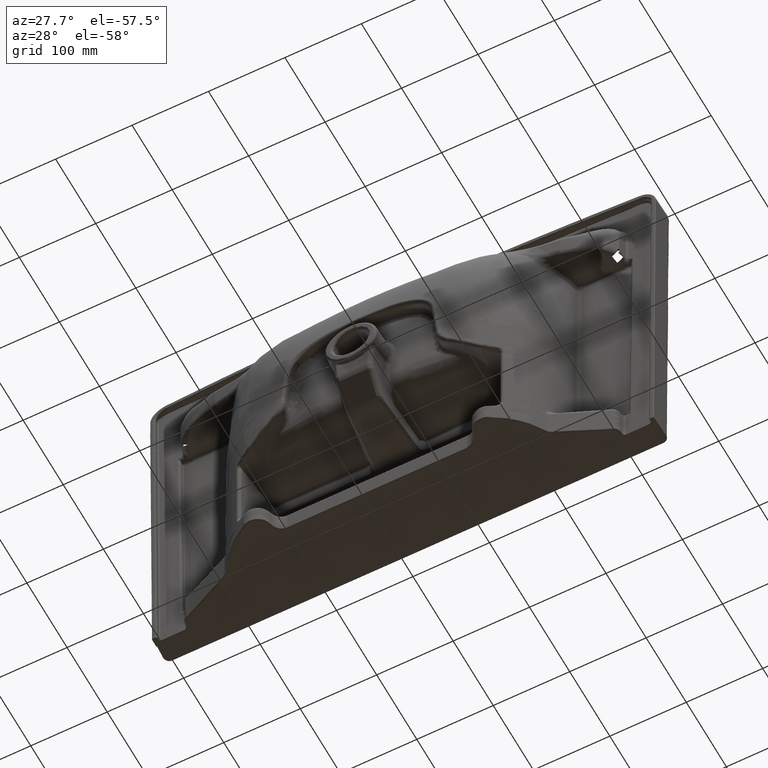
[diagram: clean part render]
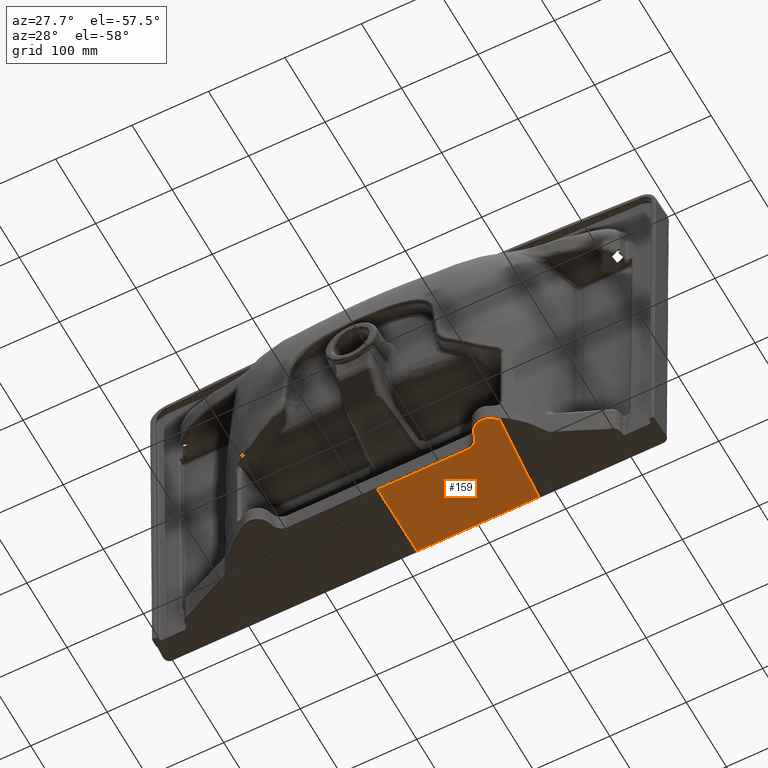
[diagram: same view with one face highlighted and labeled with its STEP entity id]
A machine part, auxiliary view. The second image highlights one B-rep face of the part: STEP entity #159.
In plain terms, the highlighted planar face has unit normal (0, 0.0332, -0.9995).
Its self-contained STEP definition (entity closure, byte-faithful):
#159=ADVANCED_FACE('',(#1765),#22925,.T.);
#1765=FACE_OUTER_BOUND('',#3371,.T.);
#3371=EDGE_LOOP('',(#5468,#5469,#5470,#5471,#5472,#5473,#5474,#5475));
#5468=ORIENTED_EDGE('',*,*,#12642,.T.);
#5469=ORIENTED_EDGE('',*,*,#12643,.T.);
#5470=ORIENTED_EDGE('',*,*,#12644,.T.);
#5471=ORIENTED_EDGE('',*,*,#12645,.T.);
#5472=ORIENTED_EDGE('',*,*,#12646,.T.);
#5473=ORIENTED_EDGE('',*,*,#15909,.T.);
#5474=ORIENTED_EDGE('',*,*,#12602,.F.);
#5475=ORIENTED_EDGE('',*,*,#12639,.F.);
#12602=EDGE_CURVE('',#20053,#20054,#19417,.T.);
#12639=EDGE_CURVE('',#20083,#20053,#16264,.T.);
#12642=EDGE_CURVE('',#20083,#20085,#16267,.T.);
#12643=EDGE_CURVE('',#20085,#20086,#16268,.T.);
#12644=EDGE_CURVE('',#20086,#20087,#16269,.T.);
#12645=EDGE_CURVE('',#20087,#20088,#16270,.T.);
#12646=EDGE_CURVE('',#20088,#20089,#16271,.T.);
#15909=EDGE_CURVE('',#20089,#20054,#19128,.T.);
#16264=B_SPLINE_CURVE_WITH_KNOTS('',3,(#106778,#106779,#106780,#106781,
#106782,#106783,#106784),.UNSPECIFIED.,.F.,.F.,(4,3,4),(1.40042685708996E-06,
0.459673495472688,1.),.UNSPECIFIED.);
#16267=B_SPLINE_CURVE_WITH_KNOTS('',3,(#106797,#106798,#106799,#106800),
 .UNSPECIFIED.,.F.,.F.,(4,4),(0.,1.),.UNSPECIFIED.);
#16268=B_SPLINE_CURVE_WITH_KNOTS('',3,(#106801,#106802,#106803,#106804,
#106805,#106806,#106807,#106808,#106809,#106810),.UNSPECIFIED.,.F.,.F.,
(4,2,2,2,4),(0.,0.25,0.5,0.75,1.),.UNSPECIFIED.);
#16269=B_SPLINE_CURVE_WITH_KNOTS('',3,(#106811,#106812,#106813,#106814),
 .UNSPECIFIED.,.F.,.F.,(4,4),(0.,1.),.UNSPECIFIED.);
#16270=B_SPLINE_CURVE_WITH_KNOTS('',3,(#106815,#106816,#106817,#106818,
#106819,#106820),.UNSPECIFIED.,.F.,.F.,(4,2,4),(0.,0.500000045148028,0.999999999953749),
 .UNSPECIFIED.);
#16271=B_SPLINE_CURVE_WITH_KNOTS('',3,(#106821,#106822,#106823,#106824),
 .UNSPECIFIED.,.F.,.F.,(4,4),(0.,0.999999999999981),.UNSPECIFIED.);
#19128=B_SPLINE_CURVE_WITH_KNOTS('',3,(#123185,#123186,#123187,#123188,
#123189,#123190,#123191,#123192,#123193,#123194),.UNSPECIFIED.,.F.,.F.,
(4,3,3,4),(0.,1.,2.,3.),.UNSPECIFIED.);
#19417=(
BOUNDED_CURVE()
B_SPLINE_CURVE(3,(#106607,#106608,#106609,#106610),.UNSPECIFIED.,.F.,.F.)
B_SPLINE_CURVE_WITH_KNOTS((4,4),(0.,1.),.UNSPECIFIED.)
CURVE()
GEOMETRIC_REPRESENTATION_ITEM()
RATIONAL_B_SPLINE_CURVE((1.,1.,1.,1.))
REPRESENTATION_ITEM('')
);
#20053=VERTEX_POINT('',#103170);
#20054=VERTEX_POINT('',#103171);
#20083=VERTEX_POINT('',#103200);
#20085=VERTEX_POINT('',#103202);
#20086=VERTEX_POINT('',#103203);
#20087=VERTEX_POINT('',#103204);
#20088=VERTEX_POINT('',#103205);
#20089=VERTEX_POINT('',#103206);
#22925=PLANE('',#23672);
#23672=AXIS2_PLACEMENT_3D('',#34047,#23944,$);
#23944=DIRECTION('',(1.84048212162428E-18,0.0331551783885167,-0.999450215941757));
#34047=CARTESIAN_POINT('',(-975.285840470214,-19.0692104503996,-249.928999479251));
#103170=CARTESIAN_POINT('',(-1025.32811044745,-19.0692104504305,-249.928999479251));
#103171=CARTESIAN_POINT('',(-1184.58326516661,-19.0692104503625,-249.92899947925));
#103200=CARTESIAN_POINT('',(-1014.94619600784,-137.359790117388,-253.853102155495));
#103202=CARTESIAN_POINT('',(-1025.38182229655,-143.888058028974,-254.069667110022));
#103203=CARTESIAN_POINT('',(-1049.94179341409,-134.288505419945,-253.751217152109));
#103204=CARTESIAN_POINT('',(-1051.88582661075,-128.370881349365,-253.55490934351));
#103205=CARTESIAN_POINT('',(-1067.22613916893,-117.269573809759,-253.186641043645));
#103206=CARTESIAN_POINT('',(-1184.5832651666,-117.26726424135,-253.186563691202));
#106607=CARTESIAN_POINT('',(-1025.32811044745,-19.0692104504305,-249.928999479251));
#106608=CARTESIAN_POINT('',(-1078.41317467696,-19.069210450648,-249.928999479255));
#106609=CARTESIAN_POINT('',(-1131.4982009371,-19.069210450493,-249.928999479252));
#106610=CARTESIAN_POINT('',(-1184.58326516661,-19.0692104503625,-249.92899947925));
#106778=CARTESIAN_POINT('',(-1014.94619600784,-137.359790117388,-253.853102155495));
#106779=CARTESIAN_POINT('',(-1016.5369570226,-119.234805208075,-253.251834480675));
#106780=CARTESIAN_POINT('',(-1018.12771803736,-101.1098202988,-252.650566805856));
#106781=CARTESIAN_POINT('',(-1019.71847905211,-82.9848353895243,-252.049299131036));
#106782=CARTESIAN_POINT('',(-1021.58835618389,-61.679627076493,-251.342532580441));
#106783=CARTESIAN_POINT('',(-1023.45823331567,-40.3744187634618,-250.635766029846));
#106784=CARTESIAN_POINT('',(-1025.32811044745,-19.0692104504305,-249.928999479251));
#106797=CARTESIAN_POINT('',(-1014.94619600784,-137.359790117388,-253.853102155495));
#106798=CARTESIAN_POINT('',(-1018.37432642104,-139.746369102839,-253.932273135588));
#106799=CARTESIAN_POINT('',(-1021.85286860549,-141.922458280138,-254.004461449565));
#106800=CARTESIAN_POINT('',(-1025.38182229655,-143.888058028974,-254.069667110022));
#106801=CARTESIAN_POINT('',(-1025.38182229655,-143.888058028974,-254.069667110022));
#106802=CARTESIAN_POINT('',(-1027.6147359741,-145.131728174524,-254.110923897878));
#106803=CARTESIAN_POINT('',(-1030.01165880452,-145.83942943972,-254.13440076678));
#106804=CARTESIAN_POINT('',(-1035.10075374988,-146.180696766362,-254.14572176998));
#106805=CARTESIAN_POINT('',(-1037.56307441929,-145.799922189857,-254.133090176321));
#106806=CARTESIAN_POINT('',(-1042.30602992472,-143.942305696799,-254.071466690506));
#106807=CARTESIAN_POINT('',(-1044.36408202718,-142.556079235744,-254.025480822606));
#106808=CARTESIAN_POINT('',(-1047.87083698696,-138.850294480524,-253.902547281076));
#106809=CARTESIAN_POINT('',(-1049.14561495597,-136.71206733446,-253.831614981165));
#106810=CARTESIAN_POINT('',(-1049.94179341409,-134.288505419945,-253.751217152109));
#106811=CARTESIAN_POINT('',(-1049.94179341409,-134.288505419945,-253.751217152109));
#106812=CARTESIAN_POINT('',(-1050.58980447964,-132.315964063085,-253.685781215909));
#106813=CARTESIAN_POINT('',(-1051.23781554519,-130.343422706224,-253.620345279709));
#106814=CARTESIAN_POINT('',(-1051.88582661075,-128.370881349365,-253.55490934351));
#106815=CARTESIAN_POINT('',(-1051.88582661075,-128.370881349365,-253.55490934351));
#106816=CARTESIAN_POINT('',(-1052.94383515496,-125.151270104226,-253.448103838371));
#106817=CARTESIAN_POINT('',(-1055.0314677538,-122.302265493962,-253.353592621527));
#106818=CARTESIAN_POINT('',(-1060.50114079548,-118.352083278268,-253.222551581223));
#106819=CARTESIAN_POINT('',(-1063.85452866854,-117.269835085559,-253.186649711056));
#106820=CARTESIAN_POINT('',(-1067.22613916893,-117.269573809759,-253.186641043645));
#106821=CARTESIAN_POINT('',(-1067.22613916893,-117.269573809759,-253.186641043645));
#106822=CARTESIAN_POINT('',(-1106.34518116099,-117.268803953623,-253.186615259497));
#106823=CARTESIAN_POINT('',(-1145.46422315242,-117.268034097486,-253.18658947535));
#106824=CARTESIAN_POINT('',(-1184.5832651666,-117.26726424135,-253.186563691202));
#123185=CARTESIAN_POINT('',(-1184.5832651666,-117.26726424135,-253.186563691202));
#123186=CARTESIAN_POINT('',(-1184.58326516661,-116.994868437929,-253.17752764135));
#123187=CARTESIAN_POINT('',(-1184.58326516661,-116.729389906656,-253.16872105471));
#123188=CARTESIAN_POINT('',(-1184.58326516661,-116.463911375384,-253.15991446807));
#123189=CARTESIAN_POINT('',(-1184.58326516661,-84.1855715408797,-252.08913165345));
#123190=CARTESIAN_POINT('',(-1184.58326516661,-51.9072317063762,-251.018348838831));
#123191=CARTESIAN_POINT('',(-1184.58326516661,-19.6288918718723,-249.947566024211));
#123192=CARTESIAN_POINT('',(-1184.58326516661,-19.4423313980356,-249.941377175891));
#123193=CARTESIAN_POINT('',(-1184.58326516661,-19.2557709241991,-249.935188327571));
#123194=CARTESIAN_POINT('',(-1184.58326516661,-19.0692104503625,-249.92899947925));